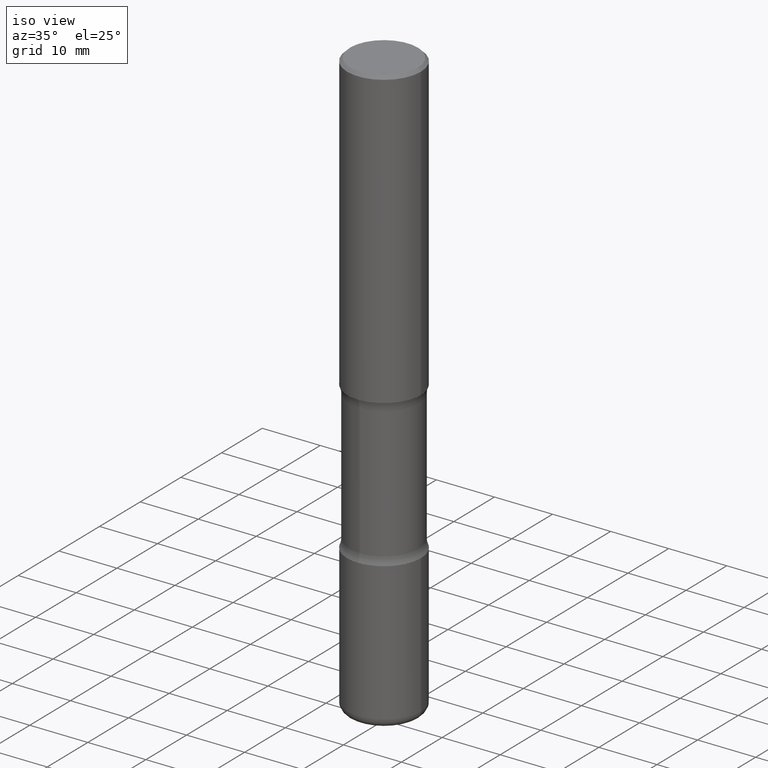
[diagram: clean part render]
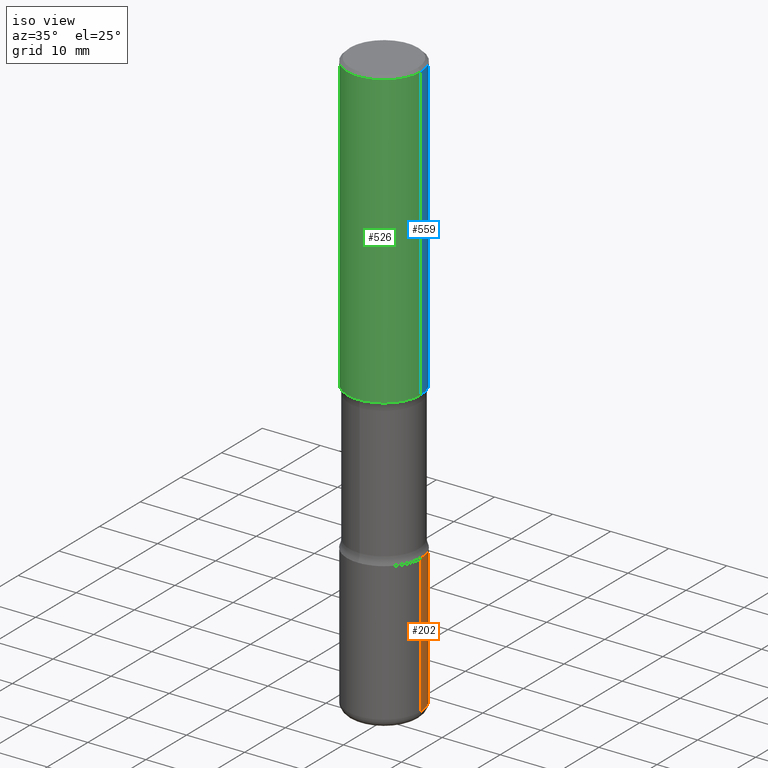
[diagram: same view with three faces highlighted in distinct colors, each labeled with its STEP entity id]
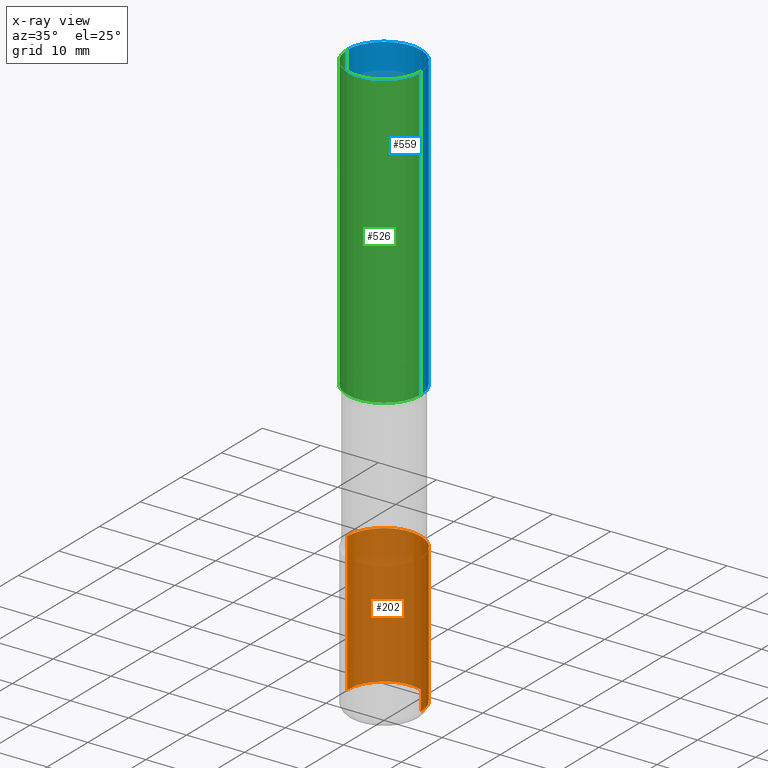
[diagram: x-ray of the same camera — body ghosted, the three highlighted faces saturated]
A machine part, iso view with three faces highlighted in distinct colors.
The next image is the same camera in x-ray (body ghosted, the three faces saturated) — at least one of them is partly hidden behind the body in this view.
Their STEP definitions:

[orange] entity #202 — the highlighted cylindrical surface (partial cylindrical patch) has radius 6.35 mm, axis along (-0, 0, 1).
#1 = ORIENTED_EDGE ( 'NONE', *, *, #495, .T. ) ;
#3 = CYLINDRICAL_SURFACE ( 'NONE', #127, 0.2500000000000003331 ) ;
#6 = VECTOR ( 'NONE', #262, 39.37007874015748143 ) ;
#9 = LINE ( 'NONE', #469, #6 ) ;
#32 = VERTEX_POINT ( 'NONE', #94 ) ;
#36 = EDGE_CURVE ( 'NONE', #82, #128, #389, .T. ) ;
#44 = EDGE_LOOP ( 'NONE', ( #460, #1, #121, #476 ) ) ;
#49 = DIRECTION ( 'NONE',  ( 1.000000000000000000, -6.982962677686270655E-15, 0.000000000000000000 ) ) ;
#52 = EDGE_CURVE ( 'NONE', #78, #82, #9, .T. ) ;
#71 = CIRCLE ( 'NONE', #272, 0.2500000000000003886 ) ;
#78 = VERTEX_POINT ( 'NONE', #196 ) ;
#82 = VERTEX_POINT ( 'NONE', #154 ) ;
#86 = DIRECTION ( 'NONE',  ( -2.445468806185136877E-29, 3.491481338843145188E-15, 1.000000000000000000 ) ) ;
#94 = CARTESIAN_POINT ( 'NONE',  ( -0.2500000000000003331, -1.198007963564174197E-14, -3.939999999999999947 ) ) ;
#108 = CARTESIAN_POINT ( 'NONE',  ( 0.000000000000000000, 0.000000000000000000, 0.000000000000000000 ) ) ;
#121 = ORIENTED_EDGE ( 'NONE', *, *, #36, .F. ) ;
#127 = AXIS2_PLACEMENT_3D ( 'NONE', #108, #291, #327 ) ;
#128 = VERTEX_POINT ( 'NONE', #221 ) ;
#139 = VECTOR ( 'NONE', #86, 39.37007874015748143 ) ;
#154 = CARTESIAN_POINT ( 'NONE',  ( 0.2500000000000002776, -1.222018468595100619E-14, -3.000000000000000444 ) ) ;
#196 = CARTESIAN_POINT ( 'NONE',  ( 0.2500000000000003331, -1.550217714446356385E-14, -3.939999999999999947 ) ) ;
#202 = ADVANCED_FACE ( 'NONE', ( #219 ), #3, .T. ) ;
#204 = CARTESIAN_POINT ( 'NONE',  ( -0.2500000000000003331, 1.776356839400252831E-15, -1.229733772563727987E-29 ) ) ;
#219 = FACE_OUTER_BOUND ( 'NONE', #44, .T. ) ;
#221 = CARTESIAN_POINT ( 'NONE',  ( -0.2500000000000002776, -1.033908340638546235E-14, -3.000000000000000444 ) ) ;
#262 = DIRECTION ( 'NONE',  ( -2.445468806185136877E-29, 3.491481338843145188E-15, 1.000000000000000000 ) ) ;
#269 = CARTESIAN_POINT ( 'NONE',  ( 7.336406418555409790E-29, -1.047444401652943635E-14, -3.000000000000000444 ) ) ;
#272 = AXIS2_PLACEMENT_3D ( 'NONE', #378, #300, #461 ) ;
#274 = AXIS2_PLACEMENT_3D ( 'NONE', #269, #357, #49 ) ;
#291 = DIRECTION ( 'NONE',  ( -2.445468806185136597E-29, 3.491481338843145583E-15, 1.000000000000000000 ) ) ;
#300 = DIRECTION ( 'NONE',  ( -2.445468806185136597E-29, 3.491481338843145583E-15, 1.000000000000000000 ) ) ;
#327 = DIRECTION ( 'NONE',  ( 1.000000000000000000, -6.982962677686266711E-15, 4.876176775795935793E-29 ) ) ;
#345 = LINE ( 'NONE', #204, #139 ) ;
#357 = DIRECTION ( 'NONE',  ( -2.445468806185136597E-29, 3.491481338843145583E-15, 1.000000000000000000 ) ) ;
#378 = CARTESIAN_POINT ( 'NONE',  ( 9.635147096369438236E-29, -1.375643647504199401E-14, -3.939999999999999947 ) ) ;
#389 = CIRCLE ( 'NONE', #274, 0.2500000000000002776 ) ;
#429 = EDGE_CURVE ( 'NONE', #78, #32, #71, .T. ) ;
#460 = ORIENTED_EDGE ( 'NONE', *, *, #429, .T. ) ;
#461 = DIRECTION ( 'NONE',  ( 1.000000000000000000, -6.982962677686267499E-15, 0.000000000000000000 ) ) ;
#469 = CARTESIAN_POINT ( 'NONE',  ( 0.2500000000000003331, -1.745740669421569044E-15, 1.219044193948985630E-29 ) ) ;
#476 = ORIENTED_EDGE ( 'NONE', *, *, #52, .F. ) ;
#495 = EDGE_CURVE ( 'NONE', #32, #128, #345, .T. ) ;

[blue] entity #559 — the highlighted cylindrical surface (partial cylindrical patch) has radius 6.35 mm, axis along (-0, 0, 1).
#16 = VECTOR ( 'NONE', #150, 39.37007874015748143 ) ;
#38 = VERTEX_POINT ( 'NONE', #309 ) ;
#91 = DIRECTION ( 'NONE',  ( 1.000000000000000000, -6.982962677686267499E-15, 0.000000000000000000 ) ) ;
#120 = VECTOR ( 'NONE', #147, 39.37007874015748143 ) ;
#126 = AXIS2_PLACEMENT_3D ( 'NONE', #135, #444, #396 ) ;
#135 = CARTESIAN_POINT ( 'NONE',  ( 4.890937612370273194E-29, -6.982962677686291165E-15, -2.000000000000000000 ) ) ;
#137 = FACE_OUTER_BOUND ( 'NONE', #166, .T. ) ;
#141 = CIRCLE ( 'NONE', #427, 0.2499999999999999167 ) ;
#147 = DIRECTION ( 'NONE',  ( -2.445468806185136877E-29, 3.491481338843145188E-15, 1.000000000000000000 ) ) ;
#150 = DIRECTION ( 'NONE',  ( -2.445468806185136877E-29, 3.491481338843145188E-15, 1.000000000000000000 ) ) ;
#152 = CIRCLE ( 'NONE', #126, 0.2500000000000001665 ) ;
#166 = EDGE_LOOP ( 'NONE', ( #199, #524, #301, #298 ) ) ;
#167 = EDGE_CURVE ( 'NONE', #304, #348, #402, .T. ) ;
#176 = DIRECTION ( 'NONE',  ( -2.445468806185136597E-29, 3.491481338843145583E-15, 1.000000000000000000 ) ) ;
#190 = CARTESIAN_POINT ( 'NONE',  ( -0.2499999999999999167, 1.675911042644703182E-15, -0.02000000000000006981 ) ) ;
#192 = CARTESIAN_POINT ( 'NONE',  ( 0.2499999999999999167, -1.784954126219745400E-15, -0.02000000000000006981 ) ) ;
#199 = ORIENTED_EDGE ( 'NONE', *, *, #535, .T. ) ;
#218 = EDGE_CURVE ( 'NONE', #38, #303, #496, .T. ) ;
#232 = DIRECTION ( 'NONE',  ( 1.000000000000000000, -6.982962677686267499E-15, 4.876176775795935793E-29 ) ) ;
#241 = EDGE_CURVE ( 'NONE', #348, #303, #141, .T. ) ;
#282 = CARTESIAN_POINT ( 'NONE',  ( -0.2500000000000000555, 1.776356839400250859E-15, -1.229733772563726866E-29 ) ) ;
#298 = ORIENTED_EDGE ( 'NONE', *, *, #167, .F. ) ;
#301 = ORIENTED_EDGE ( 'NONE', *, *, #241, .F. ) ;
#303 = VERTEX_POINT ( 'NONE', #190 ) ;
#304 = VERTEX_POINT ( 'NONE', #320 ) ;
#309 = CARTESIAN_POINT ( 'NONE',  ( -0.2500000000000001665, -1.750039312831323809E-15, -2.000000000000000000 ) ) ;
#320 = CARTESIAN_POINT ( 'NONE',  ( 0.2500000000000001665, -8.728703347107858632E-15, -2.000000000000000000 ) ) ;
#348 = VERTEX_POINT ( 'NONE', #192 ) ;
#366 = CARTESIAN_POINT ( 'NONE',  ( 0.2500000000000000555, -1.745740669421567269E-15, 1.219044193948984228E-29 ) ) ;
#396 = DIRECTION ( 'NONE',  ( 1.000000000000000000, -6.982962677686265922E-15, 0.000000000000000000 ) ) ;
#402 = LINE ( 'NONE', #366, #120 ) ;
#427 = AXIS2_PLACEMENT_3D ( 'NONE', #538, #547, #91 ) ;
#442 = CYLINDRICAL_SURFACE ( 'NONE', #500, 0.2500000000000000555 ) ;
#444 = DIRECTION ( 'NONE',  ( -2.445468806185136597E-29, 3.491481338843145583E-15, 1.000000000000000000 ) ) ;
#448 = CARTESIAN_POINT ( 'NONE',  ( 0.000000000000000000, 0.000000000000000000, 0.000000000000000000 ) ) ;
#496 = LINE ( 'NONE', #282, #16 ) ;
#500 = AXIS2_PLACEMENT_3D ( 'NONE', #448, #176, #232 ) ;
#524 = ORIENTED_EDGE ( 'NONE', *, *, #218, .T. ) ;
#535 = EDGE_CURVE ( 'NONE', #304, #38, #152, .T. ) ;
#538 = CARTESIAN_POINT ( 'NONE',  ( 4.890937612370289799E-31, -6.982962677686315028E-17, -0.02000000000000006981 ) ) ;
#547 = DIRECTION ( 'NONE',  ( -2.445468806185136597E-29, 3.491481338843145583E-15, 1.000000000000000000 ) ) ;
#559 = ADVANCED_FACE ( 'NONE', ( #137 ), #442, .T. ) ;

[green] entity #526 — the highlighted cylindrical surface (partial cylindrical patch) has radius 6.35 mm, axis along (-0, 0, 1).
#5 = FACE_OUTER_BOUND ( 'NONE', #252, .T. ) ;
#16 = VECTOR ( 'NONE', #150, 39.37007874015748143 ) ;
#26 = DIRECTION ( 'NONE',  ( -2.445468806185136597E-29, 3.491481338843145583E-15, 1.000000000000000000 ) ) ;
#29 = DIRECTION ( 'NONE',  ( 1.000000000000000000, -6.982962677686265922E-15, 0.000000000000000000 ) ) ;
#38 = VERTEX_POINT ( 'NONE', #309 ) ;
#106 = CARTESIAN_POINT ( 'NONE',  ( 0.000000000000000000, 0.000000000000000000, 0.000000000000000000 ) ) ;
#120 = VECTOR ( 'NONE', #147, 39.37007874015748143 ) ;
#147 = DIRECTION ( 'NONE',  ( -2.445468806185136877E-29, 3.491481338843145188E-15, 1.000000000000000000 ) ) ;
#150 = DIRECTION ( 'NONE',  ( -2.445468806185136877E-29, 3.491481338843145188E-15, 1.000000000000000000 ) ) ;
#161 = AXIS2_PLACEMENT_3D ( 'NONE', #106, #356, #392 ) ;
#167 = EDGE_CURVE ( 'NONE', #304, #348, #402, .T. ) ;
#183 = CARTESIAN_POINT ( 'NONE',  ( 4.890937612370289799E-31, -6.982962677686315028E-17, -0.02000000000000006981 ) ) ;
#190 = CARTESIAN_POINT ( 'NONE',  ( -0.2499999999999999167, 1.675911042644703182E-15, -0.02000000000000006981 ) ) ;
#192 = CARTESIAN_POINT ( 'NONE',  ( 0.2499999999999999167, -1.784954126219745400E-15, -0.02000000000000006981 ) ) ;
#207 = AXIS2_PLACEMENT_3D ( 'NONE', #183, #436, #358 ) ;
#218 = EDGE_CURVE ( 'NONE', #38, #303, #496, .T. ) ;
#233 = AXIS2_PLACEMENT_3D ( 'NONE', #484, #26, #29 ) ;
#245 = EDGE_CURVE ( 'NONE', #303, #348, #447, .T. ) ;
#252 = EDGE_LOOP ( 'NONE', ( #560, #265, #466, #354 ) ) ;
#265 = ORIENTED_EDGE ( 'NONE', *, *, #270, .T. ) ;
#270 = EDGE_CURVE ( 'NONE', #38, #304, #471, .T. ) ;
#282 = CARTESIAN_POINT ( 'NONE',  ( -0.2500000000000000555, 1.776356839400250859E-15, -1.229733772563726866E-29 ) ) ;
#303 = VERTEX_POINT ( 'NONE', #190 ) ;
#304 = VERTEX_POINT ( 'NONE', #320 ) ;
#309 = CARTESIAN_POINT ( 'NONE',  ( -0.2500000000000001665, -1.750039312831323809E-15, -2.000000000000000000 ) ) ;
#320 = CARTESIAN_POINT ( 'NONE',  ( 0.2500000000000001665, -8.728703347107858632E-15, -2.000000000000000000 ) ) ;
#348 = VERTEX_POINT ( 'NONE', #192 ) ;
#354 = ORIENTED_EDGE ( 'NONE', *, *, #245, .F. ) ;
#356 = DIRECTION ( 'NONE',  ( -2.445468806185136597E-29, 3.491481338843145583E-15, 1.000000000000000000 ) ) ;
#358 = DIRECTION ( 'NONE',  ( 1.000000000000000000, -6.982962677686267499E-15, 0.000000000000000000 ) ) ;
#366 = CARTESIAN_POINT ( 'NONE',  ( 0.2500000000000000555, -1.745740669421567269E-15, 1.219044193948984228E-29 ) ) ;
#392 = DIRECTION ( 'NONE',  ( 1.000000000000000000, -6.982962677686267499E-15, 4.876176775795935793E-29 ) ) ;
#402 = LINE ( 'NONE', #366, #120 ) ;
#436 = DIRECTION ( 'NONE',  ( -2.445468806185136597E-29, 3.491481338843145583E-15, 1.000000000000000000 ) ) ;
#447 = CIRCLE ( 'NONE', #207, 0.2499999999999999167 ) ;
#466 = ORIENTED_EDGE ( 'NONE', *, *, #167, .T. ) ;
#471 = CIRCLE ( 'NONE', #233, 0.2500000000000001665 ) ;
#480 = CYLINDRICAL_SURFACE ( 'NONE', #161, 0.2500000000000000555 ) ;
#484 = CARTESIAN_POINT ( 'NONE',  ( 4.890937612370273194E-29, -6.982962677686291165E-15, -2.000000000000000000 ) ) ;
#496 = LINE ( 'NONE', #282, #16 ) ;
#526 = ADVANCED_FACE ( 'NONE', ( #5 ), #480, .T. ) ;
#560 = ORIENTED_EDGE ( 'NONE', *, *, #218, .F. ) ;